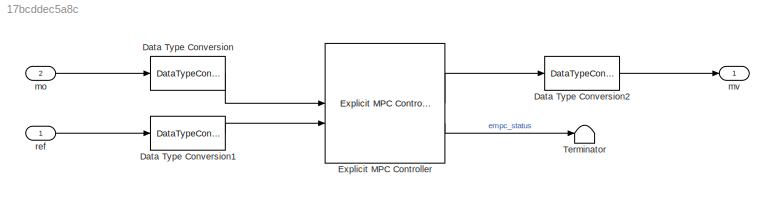
MODEL slx_17bcddec5a8c
KIND model
BLOCK [DataTypeConversion] Data Type Conversion
  OutDataTypeStr = single
  RndMeth = Floor
  SaturateOnIntegerOverflow = off
BLOCK [DataTypeConversion] Data Type Conversion1
  OutDataTypeStr = single
  RndMeth = Floor
  SaturateOnIntegerOverflow = off
BLOCK [DataTypeConversion] Data Type Conversion2
  OutDataTypeStr = double
  RndMeth = Floor
  SaturateOnIntegerOverflow = off
BLOCK [Reference] Explicit MPC Controller  REF=mpclib/Explicit MPC Controller  (lib defined in mdl_ae329e0e0455)
  SCDEnableBlockLinearizationSpecification = on
  SourceBlock = mpclib/Explicit MPC Controller
  SourceType = Explicit MPC
BLOCK [Terminator] Terminator
BLOCK [Inport] mo
  OutDataTypeStr = double
  Port = 2
  PortDimensions = 2
BLOCK [Outport] mv
BLOCK [Inport] ref
  OutDataTypeStr = double
  PortDimensions = 2
LINE Data Type Conversion1:1 -> Explicit MPC Controller:2
LINE Data Type Conversion2:1 -> mv:1
LINE Data Type Conversion:1 -> Explicit MPC Controller:1
LINE Explicit MPC Controller:1 -> Data Type Conversion2:1
LINE Explicit MPC Controller:2 -> Terminator:1
LINE mo:1 -> Data Type Conversion:1
LINE ref:1 -> Data Type Conversion1:1
